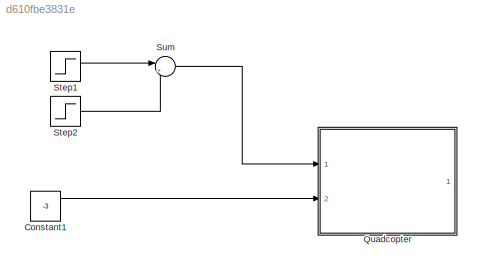
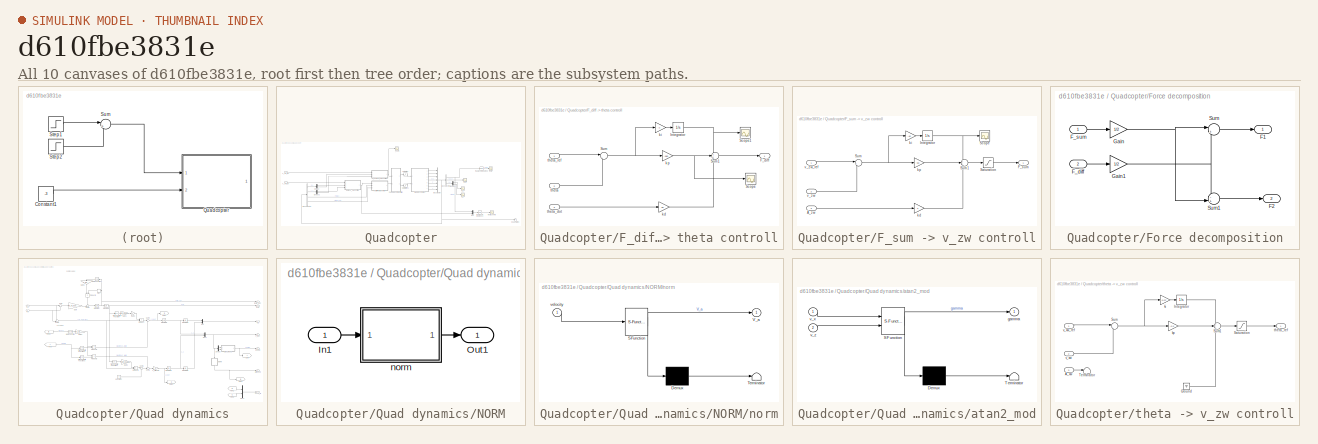
[diagram: thumbnail index - all 10 canvases of the model, root first then tree order]
MODEL slx_d610fbe3831e
KIND model
CONFIG AbsTol = auto
CONFIG EnableMultiTasking = on
CONFIG FixedStep = 1e-3
CONFIG MaxStep = auto
CONFIG MinStep = auto
CONFIG RelTol = 1e-3
CONFIG SampleTimeConstraint = Unconstrained
CONFIG Solver = FixedStepAuto
CONFIG SolverName = FixedStepAuto
CONFIG StartTime = 0.0
CONFIG StopTime = 20.0
BLOCK [Constant] Constant1
  Value = -3
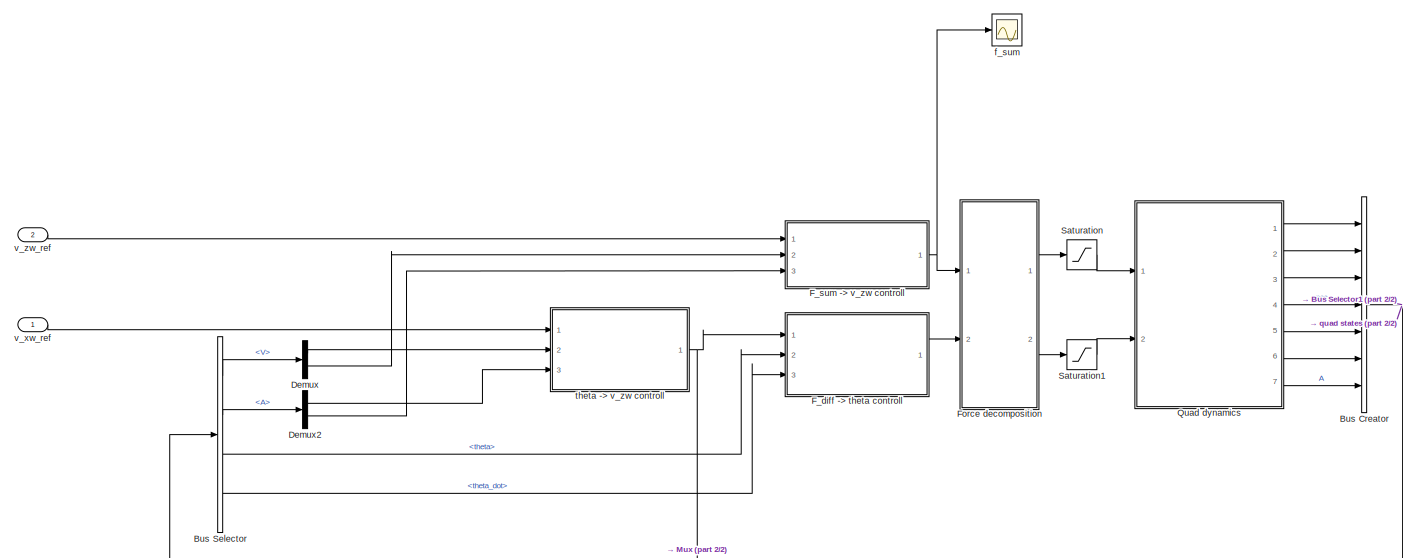
[diagram: Quadcopter - part 1/2, center side, full height]
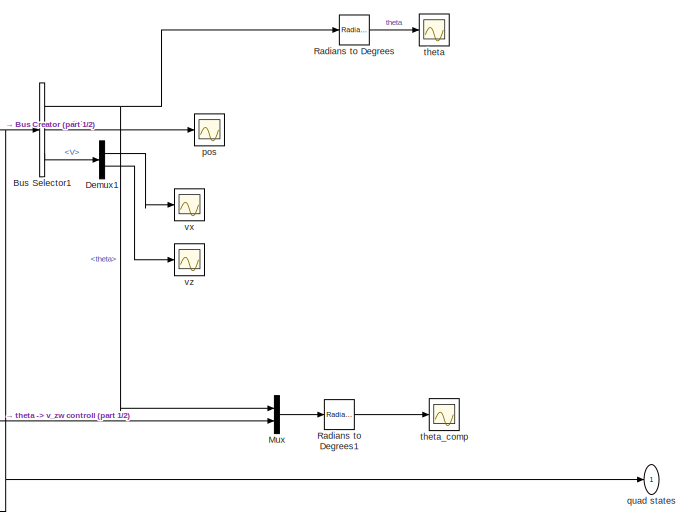
[diagram: Quadcopter - part 2/2, middle right region]
BLOCK [SubSystem] Quadcopter
  Ports = [2, 1]
  RequestExecContextInheritance = off
  Variant = off
BLOCK [BusCreator] Quadcopter/Bus Creator
  DisplayOption = bar
  InheritFromInputs = on
  Inputs = 7
  Ports = [7, 1]
BLOCK [BusSelector] Quadcopter/Bus Selector
  OutputAsBus = off
  OutputSignals = V,A,theta,theta_dot
  Ports = [1, 4]
BLOCK [BusSelector] Quadcopter/Bus Selector1
  OutputAsBus = off
  OutputSignals = theta,pos,V
  Ports = [1, 3]
BLOCK [Demux] Quadcopter/Demux
  DisplayOption = bar
  Outputs = 2
  Ports = [1, 2]
BLOCK [Demux] Quadcopter/Demux1
  DisplayOption = bar
  Outputs = 2
  Ports = [1, 2]
BLOCK [Demux] Quadcopter/Demux2
  DisplayOption = bar
  Outputs = 2
  Ports = [1, 2]
BLOCK [SubSystem] Quadcopter/F_diff -> theta controll
  Ports = [3, 1]
  RequestExecContextInheritance = off
  Variant = off
BLOCK [Outport] Quadcopter/F_diff -> theta controll/F_diff
  IconDisplay = Port number
BLOCK [Integrator] Quadcopter/F_diff -> theta controll/Integrator
  Ports = [1, 1]
BLOCK [Scope] Quadcopter/F_diff -> theta controll/Scope
  NumInputPorts = 1
  Ports = [1]
  ScopeSpecificationString = Simulink.scopes.TimeScopeBlockCfg('CurrentConfiguration', extmgr.ConfigurationSet(extmgr.Configuration('Core','General UI',true),extmgr.Configuration('Core','Source UI',true),extmgr.Configuration('Sources','WiredSimulink',true,'DataLoggingVariableName','ScopeData6'),extmgr.Configuration('Visuals','Time Domain',true,'SerializedDisplays',{struct('MinYLimReal','-489.58941','MaxYLimReal','333.65098','...<+1404ch>
BLOCK [Scope] Quadcopter/F_diff -> theta controll/Scope1
  NumInputPorts = 1
  Ports = [1]
  ScopeSpecificationString = Simulink.scopes.TimeScopeBlockCfg('CurrentConfiguration', extmgr.ConfigurationSet(extmgr.Configuration('Core','General UI',true),extmgr.Configuration('Core','Source UI',true),extmgr.Configuration('Sources','WiredSimulink',true,'DataLoggingVariableName','ScopeData7'),extmgr.Configuration('Visuals','Time Domain',true,'SerializedDisplays',{struct('MinYLimReal','-0.92171','MaxYLimReal','1.55286','YLab...<+1423ch>
BLOCK [Sum] Quadcopter/F_diff -> theta controll/Sum
  IconShape = round
  InputSameDT = off
  Inputs = |+-
  OutDataTypeStr = Inherit: Inherit via internal rule
  Ports = [2, 1]
  SaturateOnIntegerOverflow = off
BLOCK [Sum] Quadcopter/F_diff -> theta controll/Sum1
  IconShape = round
  InputSameDT = off
  Inputs = +++
  OutDataTypeStr = Inherit: Inherit via internal rule
  Ports = [3, 1]
  SaturateOnIntegerOverflow = off
BLOCK [Gain] Quadcopter/F_diff -> theta controll/kd
  Gain = 30
  OutDataTypeStr = Inherit: Inherit via internal rule
  ParamDataTypeStr = Inherit: Inherit via internal rule
  SaturateOnIntegerOverflow = off
BLOCK [Gain] Quadcopter/F_diff -> theta controll/ki
  Gain = -4
  OutDataTypeStr = Inherit: Inherit via internal rule
  ParamDataTypeStr = Inherit: Inherit via internal rule
  SaturateOnIntegerOverflow = off
BLOCK [Gain] Quadcopter/F_diff -> theta controll/kp
  Gain = -180
  OutDataTypeStr = Inherit: Inherit via internal rule
  ParamDataTypeStr = Inherit: Inherit via internal rule
  SaturateOnIntegerOverflow = off
BLOCK [Inport] Quadcopter/F_diff -> theta controll/theta
  IconDisplay = Port number
  Port = 2
BLOCK [Inport] Quadcopter/F_diff -> theta controll/theta_dot
  IconDisplay = Port number
  Port = 3
BLOCK [Inport] Quadcopter/F_diff -> theta controll/theta_ref
  IconDisplay = Port number
BLOCK [SubSystem] Quadcopter/F_sum -> v_zw controll
  Ports = [3, 1]
  RequestExecContextInheritance = off
  Variant = off
BLOCK [Inport] Quadcopter/F_sum -> v_zw controll/A_zw
  IconDisplay = Port number
  Port = 3
BLOCK [Outport] Quadcopter/F_sum -> v_zw controll/F_sum
  IconDisplay = Port number
BLOCK [Integrator] Quadcopter/F_sum -> v_zw controll/Integrator
  LimitOutput = on
  LowerSaturationLimit = -max_sum_force
  Ports = [1, 1]
  UpperSaturationLimit = max_sum_force
BLOCK [Saturate] Quadcopter/F_sum -> v_zw controll/Saturation
  InputPortMap = u0
  LowerLimit = -max_sum_force
  Ports = [1, 1]
  UpperLimit = max_sum_force
BLOCK [Scope] Quadcopter/F_sum -> v_zw controll/Scope
  NumInputPorts = 1
  Ports = [1]
  ScopeSpecificationString = Simulink.scopes.TimeScopeBlockCfg('CurrentConfiguration', extmgr.ConfigurationSet(extmgr.Configuration('Core','General UI',true),extmgr.Configuration('Core','Source UI',true),extmgr.Configuration('Sources','WiredSimulink',true,'DataLoggingVariableName','ScopeData8'),extmgr.Configuration('Visuals','Time Domain',true,'SerializedDisplays',{struct('MinYLimReal','-211.92179','MaxYLimReal','290.19255','...<+1402ch>
BLOCK [Sum] Quadcopter/F_sum -> v_zw controll/Sum
  IconShape = round
  InputSameDT = off
  Inputs = |+-
  OutDataTypeStr = Inherit: Inherit via internal rule
  Ports = [2, 1]
  SaturateOnIntegerOverflow = off
BLOCK [Sum] Quadcopter/F_sum -> v_zw controll/Sum1
  IconShape = round
  InputSameDT = off
  Inputs = +++
  OutDataTypeStr = Inherit: Inherit via internal rule
  Ports = [3, 1]
  SaturateOnIntegerOverflow = off
BLOCK [Gain] Quadcopter/F_sum -> v_zw controll/kd
  Gain = 4
  OutDataTypeStr = Inherit: Inherit via internal rule
  ParamDataTypeStr = Inherit: Inherit via internal rule
  SaturateOnIntegerOverflow = off
BLOCK [Gain] Quadcopter/F_sum -> v_zw controll/ki
  Gain = -40
  OutDataTypeStr = Inherit: Inherit via internal rule
  ParamDataTypeStr = Inherit: Inherit via internal rule
  SaturateOnIntegerOverflow = off
BLOCK [Gain] Quadcopter/F_sum -> v_zw controll/kp
  Gain = -60
  OutDataTypeStr = Inherit: Inherit via internal rule
  ParamDataTypeStr = Inherit: Inherit via internal rule
  SaturateOnIntegerOverflow = off
BLOCK [Inport] Quadcopter/F_sum -> v_zw controll/v_zw
  IconDisplay = Port number
  Port = 2
BLOCK [Inport] Quadcopter/F_sum -> v_zw controll/v_zw_ref
  IconDisplay = Port number
BLOCK [SubSystem] Quadcopter/Force decomposition
  Ports = [2, 2]
  RequestExecContextInheritance = off
  Variant = off
BLOCK [Outport] Quadcopter/Force decomposition/F1
  IconDisplay = Port number
BLOCK [Outport] Quadcopter/Force decomposition/F2
  IconDisplay = Port number
  Port = 2
BLOCK [Inport] Quadcopter/Force decomposition/F_diff
  IconDisplay = Port number
  Port = 2
BLOCK [Inport] Quadcopter/Force decomposition/F_sum
  IconDisplay = Port number
BLOCK [Gain] Quadcopter/Force decomposition/Gain
  Gain = 1/2
  OutDataTypeStr = Inherit: Inherit via internal rule
  ParamDataTypeStr = Inherit: Inherit via internal rule
  SaturateOnIntegerOverflow = off
BLOCK [Gain] Quadcopter/Force decomposition/Gain1
  Gain = 1/2
  OutDataTypeStr = Inherit: Inherit via internal rule
  ParamDataTypeStr = Inherit: Inherit via internal rule
  SaturateOnIntegerOverflow = off
BLOCK [Sum] Quadcopter/Force decomposition/Sum
  IconShape = round
  InputSameDT = off
  Inputs = |++
  OutDataTypeStr = Inherit: Inherit via internal rule
  Ports = [2, 1]
  SaturateOnIntegerOverflow = off
BLOCK [Sum] Quadcopter/Force decomposition/Sum1
  IconShape = round
  InputSameDT = off
  Inputs = -+|
  OutDataTypeStr = Inherit: Inherit via internal rule
  Ports = [2, 1]
  SaturateOnIntegerOverflow = off
BLOCK [Mux] Quadcopter/Mux
  DisplayOption = bar
  Inputs = 2
  Ports = [2, 1]
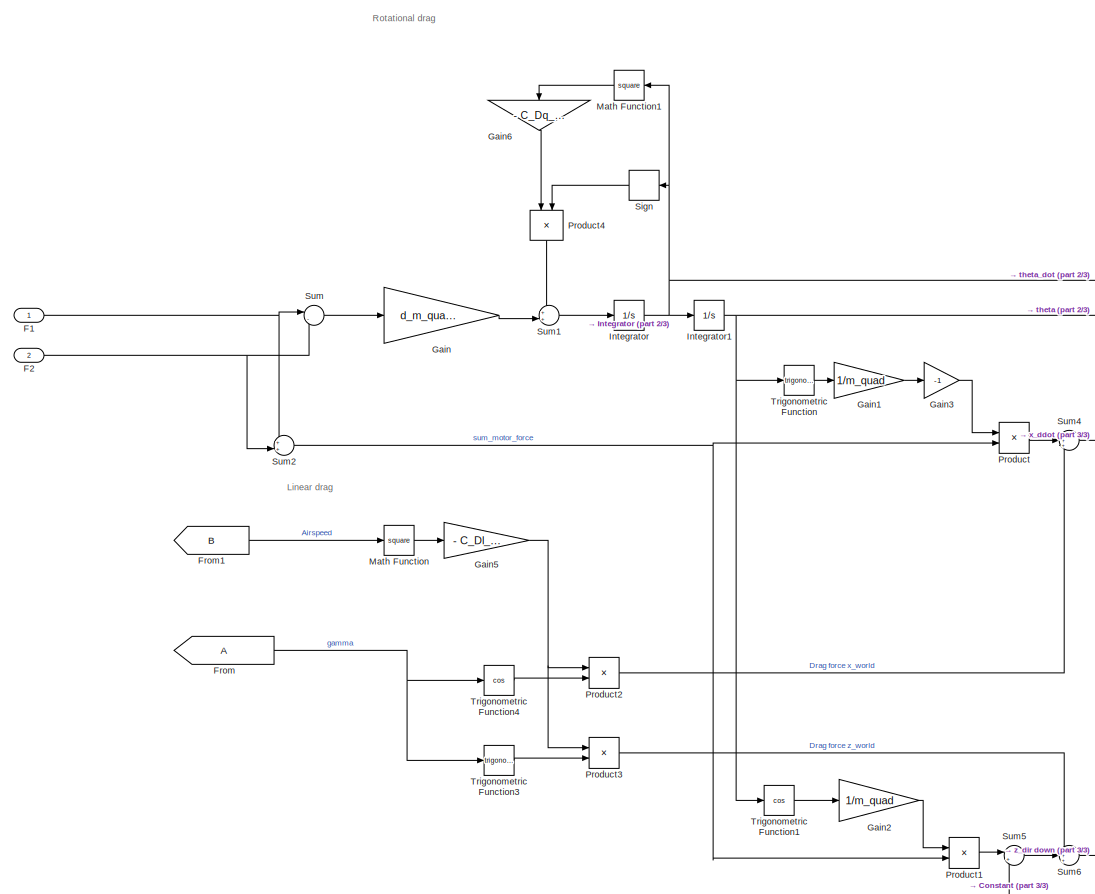
[diagram: Quadcopter/Quad dynamics - part 1/3, left side, full height]
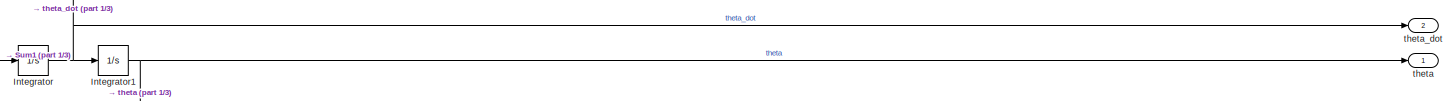
[diagram: Quadcopter/Quad dynamics - part 2/3, top center region]
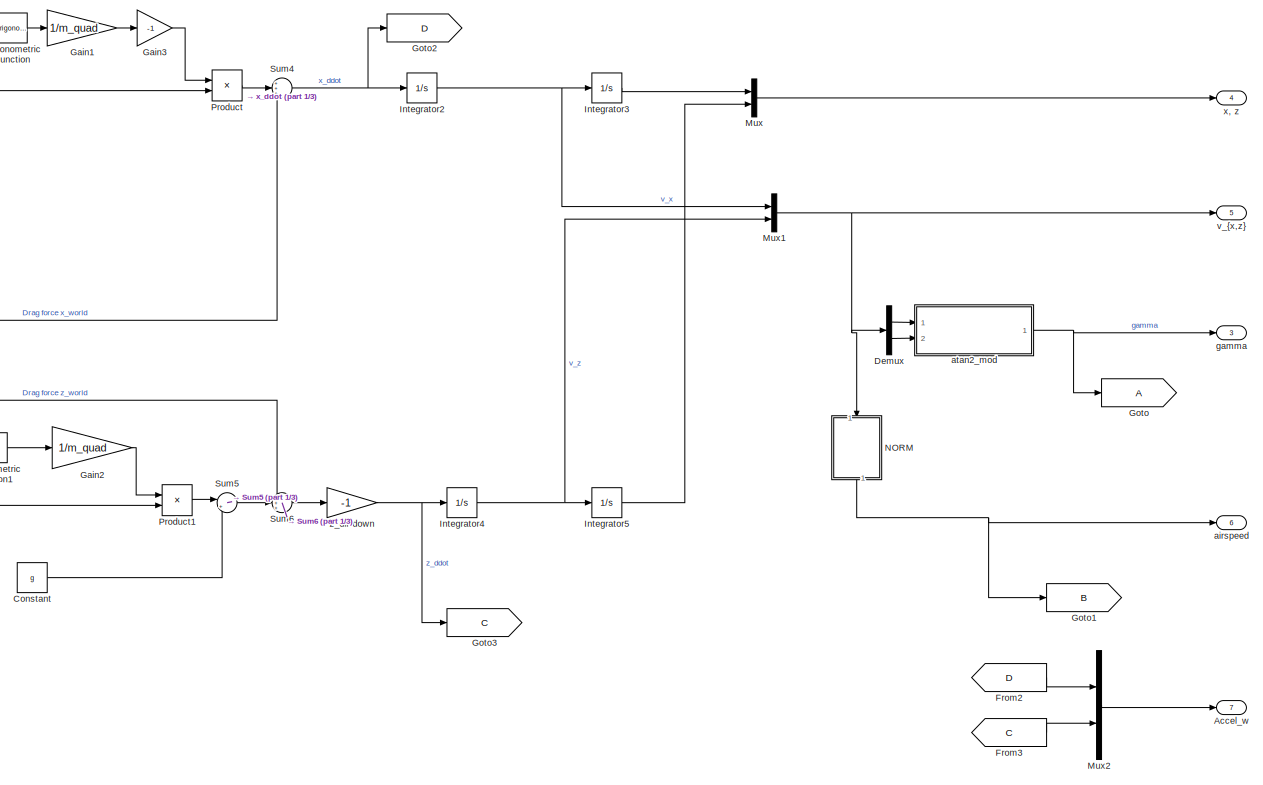
[diagram: Quadcopter/Quad dynamics - part 3/3, middle right region]
BLOCK [SubSystem] Quadcopter/Quad dynamics
  Ports = [2, 7]
  RequestExecContextInheritance = off
  Variant = off
BLOCK [Outport] Quadcopter/Quad dynamics/Accel_w
  IconDisplay = Port number
  Port = 7
BLOCK [Constant] Quadcopter/Quad dynamics/Constant
  Value = g
BLOCK [Demux] Quadcopter/Quad dynamics/Demux
  DisplayOption = bar
  Outputs = 2
  Ports = [1, 2]
BLOCK [Inport] Quadcopter/Quad dynamics/F1
  IconDisplay = Port number
BLOCK [Inport] Quadcopter/Quad dynamics/F2
  IconDisplay = Port number
  Port = 2
BLOCK [From] Quadcopter/Quad dynamics/From
  IconDisplay = Signal name
BLOCK [From] Quadcopter/Quad dynamics/From1
  GotoTag = B
  IconDisplay = Signal name
BLOCK [From] Quadcopter/Quad dynamics/From2
  GotoTag = D
  IconDisplay = Signal name
BLOCK [From] Quadcopter/Quad dynamics/From3
  GotoTag = C
  IconDisplay = Signal name
BLOCK [Gain] Quadcopter/Quad dynamics/Gain
  Gain = d_m_quad/J_quad
  OutDataTypeStr = Inherit: Inherit via internal rule
  ParamDataTypeStr = Inherit: Inherit via internal rule
  SaturateOnIntegerOverflow = off
BLOCK [Gain] Quadcopter/Quad dynamics/Gain1
  Gain = 1/m_quad
  OutDataTypeStr = Inherit: Inherit via internal rule
  ParamDataTypeStr = Inherit: Inherit via internal rule
  SaturateOnIntegerOverflow = off
BLOCK [Gain] Quadcopter/Quad dynamics/Gain2
  Gain = 1/m_quad
  OutDataTypeStr = Inherit: Inherit via internal rule
  ParamDataTypeStr = Inherit: Inherit via internal rule
  SaturateOnIntegerOverflow = off
BLOCK [Gain] Quadcopter/Quad dynamics/Gain3
  Gain = -1
  OutDataTypeStr = Inherit: Inherit via internal rule
  ParamDataTypeStr = Inherit: Inherit via internal rule
  SaturateOnIntegerOverflow = off
BLOCK [Gain] Quadcopter/Quad dynamics/Gain5
  Gain = - C_Dl_quad
  OutDataTypeStr = Inherit: Inherit via internal rule
  ParamDataTypeStr = Inherit: Inherit via internal rule
  SaturateOnIntegerOverflow = off
BLOCK [Gain] Quadcopter/Quad dynamics/Gain6
  Gain = - C_Dq_quad
  OutDataTypeStr = Inherit: Inherit via internal rule
  ParamDataTypeStr = Inherit: Inherit via internal rule
  SaturateOnIntegerOverflow = off
BLOCK [Goto] Quadcopter/Quad dynamics/Goto
  IconDisplay = Signal name
BLOCK [Goto] Quadcopter/Quad dynamics/Goto1
  GotoTag = B
  IconDisplay = Signal name
BLOCK [Goto] Quadcopter/Quad dynamics/Goto2
  GotoTag = D
  IconDisplay = Signal name
BLOCK [Goto] Quadcopter/Quad dynamics/Goto3
  GotoTag = C
  IconDisplay = Signal name
BLOCK [Integrator] Quadcopter/Quad dynamics/Integrator
  Ports = [1, 1]
BLOCK [Integrator] Quadcopter/Quad dynamics/Integrator1
  InitialCondition = 5*deg2rad
  Ports = [1, 1]
BLOCK [Integrator] Quadcopter/Quad dynamics/Integrator2
  Ports = [1, 1]
BLOCK [Integrator] Quadcopter/Quad dynamics/Integrator3
  Ports = [1, 1]
BLOCK [Integrator] Quadcopter/Quad dynamics/Integrator4
  Ports = [1, 1]
BLOCK [Integrator] Quadcopter/Quad dynamics/Integrator5
  Ports = [1, 1]
BLOCK [Math] Quadcopter/Quad dynamics/Math Function
  Operator = square
  Ports = [1, 1]
BLOCK [Math] Quadcopter/Quad dynamics/Math Function1
  Operator = square
  Ports = [1, 1]
BLOCK [Mux] Quadcopter/Quad dynamics/Mux
  DisplayOption = bar
  Inputs = 2
  Ports = [2, 1]
BLOCK [Mux] Quadcopter/Quad dynamics/Mux1
  DisplayOption = bar
  Inputs = 2
  Ports = [2, 1]
BLOCK [Mux] Quadcopter/Quad dynamics/Mux2
  DisplayOption = bar
  Inputs = 2
  Ports = [2, 1]
BLOCK [SubSystem] Quadcopter/Quad dynamics/NORM
  Ports = [1, 1]
  RequestExecContextInheritance = off
  Variant = off
BLOCK [Inport] Quadcopter/Quad dynamics/NORM/In1
  IconDisplay = Port number
BLOCK [Outport] Quadcopter/Quad dynamics/NORM/Out1
  IconDisplay = Port number
BLOCK [SubSystem] Quadcopter/Quad dynamics/NORM/norm
  ErrorFcn = Stateflow.Translate.translate
  PermitHierarchicalResolution = ExplicitOnly
  Ports = [1, 1]
  RequestExecContextInheritance = off
  SFBlockType = MATLAB Function
  TreatAsAtomicUnit = on
  Variant = off
BLOCK [Demux] Quadcopter/Quad dynamics/NORM/norm/ Demux 
  Outputs = 1
  Ports = [1, 1]
BLOCK [S-Function] Quadcopter/Quad dynamics/NORM/norm/ SFunction 
  EnableBusSupport = on
  FunctionName = sf_sfun
  PortCounts = [1 2]
  Ports = [1, 2]
  SFcnIsStateOwnerBlock = off
  SFunctionDeploymentMode = off
  Tag = Stateflow S-Function long_quad 2
BLOCK [Terminator] Quadcopter/Quad dynamics/NORM/norm/ Terminator 
BLOCK [Outport] Quadcopter/Quad dynamics/NORM/norm/V_a
  IconDisplay = Port number
BLOCK [Inport] Quadcopter/Quad dynamics/NORM/norm/velocity
  IconDisplay = Port number
BLOCK [Product] Quadcopter/Quad dynamics/Product
  InputSameDT = off
  OutDataTypeStr = Inherit: Inherit via internal rule
  Ports = [2, 1]
  RndMeth = Floor
  SaturateOnIntegerOverflow = off
BLOCK [Product] Quadcopter/Quad dynamics/Product1
  InputSameDT = off
  OutDataTypeStr = Inherit: Inherit via internal rule
  Ports = [2, 1]
  RndMeth = Floor
  SaturateOnIntegerOverflow = off
BLOCK [Product] Quadcopter/Quad dynamics/Product2
  InputSameDT = off
  OutDataTypeStr = Inherit: Inherit via internal rule
  Ports = [2, 1]
  RndMeth = Floor
  SaturateOnIntegerOverflow = off
BLOCK [Product] Quadcopter/Quad dynamics/Product3
  InputSameDT = off
  OutDataTypeStr = Inherit: Inherit via internal rule
  Ports = [2, 1]
  RndMeth = Floor
  SaturateOnIntegerOverflow = off
BLOCK [Product] Quadcopter/Quad dynamics/Product4
  InputSameDT = off
  OutDataTypeStr = Inherit: Inherit via internal rule
  Ports = [2, 1]
  RndMeth = Floor
  SaturateOnIntegerOverflow = off
BLOCK [Signum] Quadcopter/Quad dynamics/Sign
BLOCK [Sum] Quadcopter/Quad dynamics/Sum
  IconShape = round
  InputSameDT = off
  Inputs = |-+
  OutDataTypeStr = Inherit: Inherit via internal rule
  Ports = [2, 1]
  SaturateOnIntegerOverflow = off
BLOCK [Sum] Quadcopter/Quad dynamics/Sum1
  IconShape = round
  InputSameDT = off
  Inputs = ++|
  OutDataTypeStr = Inherit: Inherit via internal rule
  Ports = [2, 1]
  SaturateOnIntegerOverflow = off
BLOCK [Sum] Quadcopter/Quad dynamics/Sum2
  IconShape = round
  InputSameDT = off
  Inputs = ++|
  OutDataTypeStr = Inherit: Inherit via internal rule
  Ports = [2, 1]
  SaturateOnIntegerOverflow = off
BLOCK [Sum] Quadcopter/Quad dynamics/Sum4
  IconShape = round
  InputSameDT = off
  Inputs = +++
  OutDataTypeStr = Inherit: Inherit via internal rule
  Ports = [3, 1]
  SaturateOnIntegerOverflow = off
BLOCK [Sum] Quadcopter/Quad dynamics/Sum5
  IconShape = round
  InputSameDT = off
  Inputs = |+-
  OutDataTypeStr = Inherit: Inherit via internal rule
  Ports = [2, 1]
  SaturateOnIntegerOverflow = off
BLOCK [Sum] Quadcopter/Quad dynamics/Sum6
  IconShape = round
  InputSameDT = off
  Inputs = +++
  OutDataTypeStr = Inherit: Inherit via internal rule
  Ports = [3, 1]
  SaturateOnIntegerOverflow = off
BLOCK [Trigonometry] Quadcopter/Quad dynamics/Trigonometric Function
  Ports = [1, 1]
BLOCK [Trigonometry] Quadcopter/Quad dynamics/Trigonometric Function1
  Operator = cos
  Ports = [1, 1]
BLOCK [Trigonometry] Quadcopter/Quad dynamics/Trigonometric Function3
  Ports = [1, 1]
BLOCK [Trigonometry] Quadcopter/Quad dynamics/Trigonometric Function4
  Operator = cos
  Ports = [1, 1]
BLOCK [Outport] Quadcopter/Quad dynamics/airspeed
  IconDisplay = Port number
  Port = 6
BLOCK [SubSystem] Quadcopter/Quad dynamics/atan2_mod
  ErrorFcn = Stateflow.Translate.translate
  PermitHierarchicalResolution = ExplicitOnly
  Ports = [2, 1]
  RequestExecContextInheritance = off
  SFBlockType = MATLAB Function
  TreatAsAtomicUnit = on
  Variant = off
BLOCK [Demux] Quadcopter/Quad dynamics/atan2_mod/ Demux 
  Outputs = 1
  Ports = [1, 1]
BLOCK [S-Function] Quadcopter/Quad dynamics/atan2_mod/ SFunction 
  EnableBusSupport = on
  FunctionName = sf_sfun
  PortCounts = [2 2]
  Ports = [2, 2]
  SFcnIsStateOwnerBlock = off
  SFunctionDeploymentMode = off
  Tag = Stateflow S-Function long_quad 1
BLOCK [Terminator] Quadcopter/Quad dynamics/atan2_mod/ Terminator 
BLOCK [Outport] Quadcopter/Quad dynamics/atan2_mod/gamma
  IconDisplay = Port number
BLOCK [Inport] Quadcopter/Quad dynamics/atan2_mod/v_x
  IconDisplay = Port number
BLOCK [Inport] Quadcopter/Quad dynamics/atan2_mod/v_z
  IconDisplay = Port number
  Port = 2
BLOCK [Outport] Quadcopter/Quad dynamics/gamma
  IconDisplay = Port number
  Port = 3
BLOCK [Outport] Quadcopter/Quad dynamics/theta
  IconDisplay = Port number
BLOCK [Outport] Quadcopter/Quad dynamics/theta_dot
  IconDisplay = Port number
  Port = 2
BLOCK [Outport] Quadcopter/Quad dynamics/v_{x,z}
  IconDisplay = Port number
  Port = 5
BLOCK [Outport] Quadcopter/Quad dynamics/x, z
  IconDisplay = Port number
  Port = 4
BLOCK [Gain] Quadcopter/Quad dynamics/z_dir down
  Gain = -1
  OutDataTypeStr = Inherit: Inherit via internal rule
  ParamDataTypeStr = Inherit: Inherit via internal rule
  SaturateOnIntegerOverflow = off
BLOCK [Reference] Quadcopter/Radians to Degrees  REF=simulink_extras/Transformations/Radians
to Degrees
  Ports = [1, 1]
  SourceBlock = simulink_extras/Transformations/Radians\nto Degrees
  SourceProductBaseCode = SL
  SourceProductName = Simulink
  SourceType = RadiansToDegrees
BLOCK [Reference] Quadcopter/Radians to Degrees1  REF=simulink_extras/Transformations/Radians
to Degrees
  Ports = [1, 1]
  SourceBlock = simulink_extras/Transformations/Radians\nto Degrees
  SourceProductBaseCode = SL
  SourceProductName = Simulink
  SourceType = RadiansToDegrees
BLOCK [Saturate] Quadcopter/Saturation
  InputPortMap = u0
  LowerLimit = -max_sum_force/2
  Ports = [1, 1]
  UpperLimit = max_sum_force/2
BLOCK [Saturate] Quadcopter/Saturation1
  InputPortMap = u0
  LowerLimit = -max_sum_force/2
  Ports = [1, 1]
  UpperLimit = max_sum_force/2
BLOCK [Scope] Quadcopter/f_sum
  NumInputPorts = 1
  Ports = [1]
  ScopeSpecificationString = Simulink.scopes.TimeScopeBlockCfg('CurrentConfiguration', extmgr.ConfigurationSet(extmgr.Configuration('Core','General UI',true),extmgr.Configuration('Core','Source UI',true),extmgr.Configuration('Sources','WiredSimulink',true,'DataLoggingSaveFormat','Array','DataLoggingDecimation','1','DataLoggingDecimateData',true,'DataLoggingVariableName','ScopeData5'),extmgr.Configuration('Visuals','Time Domai...<+1702ch>
BLOCK [Scope] Quadcopter/pos 
  NumInputPorts = 1
  Ports = [1]
  ScopeSpecificationString = Simulink.scopes.TimeScopeBlockCfg('CurrentConfiguration', extmgr.ConfigurationSet(extmgr.Configuration('Core','General UI',true),extmgr.Configuration('Core','Source UI',true),extmgr.Configuration('Sources','WiredSimulink',true,'DataLoggingSaveFormat','Array','DataLoggingDecimation','1','DataLoggingDecimateData',true,'DataLoggingVariableName','ScopeData1'),extmgr.Configuration('Visuals','Time Domai...<+1720ch>
BLOCK [Outport] Quadcopter/quad states
  IconDisplay = Port number
BLOCK [Scope] Quadcopter/theta
  NumInputPorts = 1
  Ports = [1]
  ScopeSpecificationString = Simulink.scopes.TimeScopeBlockCfg('CurrentConfiguration', extmgr.ConfigurationSet(extmgr.Configuration('Core','General UI',true),extmgr.Configuration('Core','Source UI',true),extmgr.Configuration('Sources','WiredSimulink',true,'DataLoggingSaveFormat','Array','DataLoggingDecimation','1','DataLoggingDecimateData',true),extmgr.Configuration('Visuals','Time Domain',true,'SerializedDisplays',{struct('M...<+1666ch>
BLOCK [SubSystem] Quadcopter/theta -> v_zw controll
  Ports = [3, 1]
  RequestExecContextInheritance = off
  Variant = off
BLOCK [Inport] Quadcopter/theta -> v_zw controll/A_xw
  IconDisplay = Port number
  Port = 3
BLOCK [Ground] Quadcopter/theta -> v_zw controll/Ground
BLOCK [Integrator] Quadcopter/theta -> v_zw controll/Integrator
  LimitOutput = on
  LowerSaturationLimit = -80*deg2rad
  Ports = [1, 1]
  UpperSaturationLimit = 80*deg2rad
BLOCK [Saturate] Quadcopter/theta -> v_zw controll/Saturation
  InputPortMap = u0
  LowerLimit = -80*deg2rad
  Ports = [1, 1]
  UpperLimit = 80*deg2rad
BLOCK [Sum] Quadcopter/theta -> v_zw controll/Sum
  IconShape = round
  InputSameDT = off
  Inputs = |+-
  OutDataTypeStr = Inherit: Inherit via internal rule
  Ports = [2, 1]
  SaturateOnIntegerOverflow = off
BLOCK [Sum] Quadcopter/theta -> v_zw controll/Sum1
  IconShape = round
  InputSameDT = off
  Inputs = +++
  OutDataTypeStr = Inherit: Inherit via internal rule
  Ports = [3, 1]
  SaturateOnIntegerOverflow = off
BLOCK [Terminator] Quadcopter/theta -> v_zw controll/Terminator
BLOCK [Gain] Quadcopter/theta -> v_zw controll/ki
  Gain = -0.07
  OutDataTypeStr = Inherit: Inherit via internal rule
  ParamDataTypeStr = Inherit: Inherit via internal rule
  SaturateOnIntegerOverflow = off
BLOCK [Gain] Quadcopter/theta -> v_zw controll/kp
  Gain = -0.5
  OutDataTypeStr = Inherit: Inherit via internal rule
  ParamDataTypeStr = Inherit: Inherit via internal rule
  SaturateOnIntegerOverflow = off
BLOCK [Outport] Quadcopter/theta -> v_zw controll/theta_ref
  IconDisplay = Port number
BLOCK [Inport] Quadcopter/theta -> v_zw controll/v_xw
  IconDisplay = Port number
  Port = 2
BLOCK [Inport] Quadcopter/theta -> v_zw controll/v_xw_ref
  IconDisplay = Port number
BLOCK [Scope] Quadcopter/theta_comp
  NumInputPorts = 1
  Ports = [1]
  ScopeSpecificationString = Simulink.scopes.TimeScopeBlockCfg('CurrentConfiguration', extmgr.ConfigurationSet(extmgr.Configuration('Core','General UI',true),extmgr.Configuration('Core','Source UI',true),extmgr.Configuration('Sources','WiredSimulink',true,'DataLoggingSaveFormat','Array','DataLoggingDecimation','1','DataLoggingDecimateData',true,'DataLoggingVariableName','ScopeData2'),extmgr.Configuration('Visuals','Time Domai...<+1744ch>
BLOCK [Inport] Quadcopter/v_xw_ref
  IconDisplay = Port number
BLOCK [Inport] Quadcopter/v_zw_ref
  IconDisplay = Port number
  Port = 2
BLOCK [Scope] Quadcopter/vx
  NumInputPorts = 1
  Ports = [1]
  ScopeSpecificationString = Simulink.scopes.TimeScopeBlockCfg('CurrentConfiguration', extmgr.ConfigurationSet(extmgr.Configuration('Core','General UI',true),extmgr.Configuration('Core','Source UI',true),extmgr.Configuration('Sources','WiredSimulink',true,'DataLoggingSaveFormat','Array','DataLoggingDecimation','1','DataLoggingDecimateData',true,'DataLoggingVariableName','ScopeData4'),extmgr.Configuration('Visuals','Time Domai...<+1682ch>
BLOCK [Scope] Quadcopter/vz 
  NumInputPorts = 1
  Ports = [1]
  ScopeSpecificationString = Simulink.scopes.TimeScopeBlockCfg('CurrentConfiguration', extmgr.ConfigurationSet(extmgr.Configuration('Core','General UI',true),extmgr.Configuration('Core','Source UI',true),extmgr.Configuration('Sources','WiredSimulink',true,'DataLoggingSaveFormat','Array','DataLoggingDecimation','1','DataLoggingDecimateData',true,'DataLoggingVariableName','ScopeData2'),extmgr.Configuration('Visuals','Time Domai...<+1706ch>
BLOCK [Step] Step1
  After = 17
  SampleTime = 0
  Time = 5
BLOCK [Step] Step2
  After = -5
  SampleTime = 0
  Time = 14
BLOCK [Sum] Sum
  IconShape = round
  InputSameDT = off
  Inputs = |++
  OutDataTypeStr = Inherit: Inherit via internal rule
  Ports = [2, 1]
  SaturateOnIntegerOverflow = off
ANNOTATION Quadcopter/Quad dynamics: Linear drag
ANNOTATION Quadcopter/Quad dynamics: Rotational drag
LINE Constant1:1 -> Quadcopter:2
NET Quadcopter/Bus Creator:1 -> Quadcopter/Bus Selector1:1, Quadcopter/Bus Selector:1, Quadcopter/quad states:1
NET Quadcopter/Bus Selector1:1 -> Quadcopter/Mux:1, Quadcopter/Radians to Degrees:1
LINE Quadcopter/Bus Selector1:2 -> Quadcopter/pos :1
LINE Quadcopter/Bus Selector1:3 -> Quadcopter/Demux1:1
LINE Quadcopter/Bus Selector:1 -> Quadcopter/Demux:1
LINE Quadcopter/Bus Selector:2 -> Quadcopter/Demux2:1
LINE Quadcopter/Bus Selector:3 -> Quadcopter/F_diff -> theta controll:2
LINE Quadcopter/Bus Selector:4 -> Quadcopter/F_diff -> theta controll:3
LINE Quadcopter/Demux1:1 -> Quadcopter/vx:1
LINE Quadcopter/Demux1:2 -> Quadcopter/vz :1
LINE Quadcopter/Demux2:1 -> Quadcopter/theta -> v_zw controll:3
LINE Quadcopter/Demux2:2 -> Quadcopter/F_sum -> v_zw controll:3
LINE Quadcopter/Demux:1 -> Quadcopter/theta -> v_zw controll:2
LINE Quadcopter/Demux:2 -> Quadcopter/F_sum -> v_zw controll:2
NET Quadcopter/F_diff -> theta controll/Integrator:1 -> Quadcopter/F_diff -> theta controll/Scope1:1, Quadcopter/F_diff -> theta controll/Sum1:1
LINE Quadcopter/F_diff -> theta controll/Sum1:1 -> Quadcopter/F_diff -> theta controll/F_diff:1
NET Quadcopter/F_diff -> theta controll/Sum:1 -> Quadcopter/F_diff -> theta controll/ki:1, Quadcopter/F_diff -> theta controll/kp:1
LINE Quadcopter/F_diff -> theta controll/kd:1 -> Quadcopter/F_diff -> theta controll/Sum1:3
LINE Quadcopter/F_diff -> theta controll/ki:1 -> Quadcopter/F_diff -> theta controll/Integrator:1
NET Quadcopter/F_diff -> theta controll/kp:1 -> Quadcopter/F_diff -> theta controll/Scope:1, Quadcopter/F_diff -> theta controll/Sum1:2
LINE Quadcopter/F_diff -> theta controll/theta:1 -> Quadcopter/F_diff -> theta controll/Sum:2
LINE Quadcopter/F_diff -> theta controll/theta_dot:1 -> Quadcopter/F_diff -> theta controll/kd:1
LINE Quadcopter/F_diff -> theta controll/theta_ref:1 -> Quadcopter/F_diff -> theta controll/Sum:1
LINE Quadcopter/F_diff -> theta controll:1 -> Quadcopter/Force decomposition:2
LINE Quadcopter/F_sum -> v_zw controll/A_zw:1 -> Quadcopter/F_sum -> v_zw controll/kd:1
NET Quadcopter/F_sum -> v_zw controll/Integrator:1 -> Quadcopter/F_sum -> v_zw controll/Scope:1, Quadcopter/F_sum -> v_zw controll/Sum1:1
LINE Quadcopter/F_sum -> v_zw controll/Saturation:1 -> Quadcopter/F_sum -> v_zw controll/F_sum:1
LINE Quadcopter/F_sum -> v_zw controll/Sum1:1 -> Quadcopter/F_sum -> v_zw controll/Saturation:1
NET Quadcopter/F_sum -> v_zw controll/Sum:1 -> Quadcopter/F_sum -> v_zw controll/ki:1, Quadcopter/F_sum -> v_zw controll/kp:1
LINE Quadcopter/F_sum -> v_zw controll/kd:1 -> Quadcopter/F_sum -> v_zw controll/Sum1:3
LINE Quadcopter/F_sum -> v_zw controll/ki:1 -> Quadcopter/F_sum -> v_zw controll/Integrator:1
LINE Quadcopter/F_sum -> v_zw controll/kp:1 -> Quadcopter/F_sum -> v_zw controll/Sum1:2
LINE Quadcopter/F_sum -> v_zw controll/v_zw:1 -> Quadcopter/F_sum -> v_zw controll/Sum:2
LINE Quadcopter/F_sum -> v_zw controll/v_zw_ref:1 -> Quadcopter/F_sum -> v_zw controll/Sum:1
NET Quadcopter/F_sum -> v_zw controll:1 -> Quadcopter/Force decomposition:1, Quadcopter/f_sum:1
LINE Quadcopter/Force decomposition/F_diff:1 -> Quadcopter/Force decomposition/Gain1:1
LINE Quadcopter/Force decomposition/F_sum:1 -> Quadcopter/Force decomposition/Gain:1
NET Quadcopter/Force decomposition/Gain1:1 -> Quadcopter/Force decomposition/Sum1:1, Quadcopter/Force decomposition/Sum:2
NET Quadcopter/Force decomposition/Gain:1 -> Quadcopter/Force decomposition/Sum1:2, Quadcopter/Force decomposition/Sum:1
LINE Quadcopter/Force decomposition/Sum1:1 -> Quadcopter/Force decomposition/F2:1
LINE Quadcopter/Force decomposition/Sum:1 -> Quadcopter/Force decomposition/F1:1
LINE Quadcopter/Force decomposition:1 -> Quadcopter/Saturation:1
LINE Quadcopter/Force decomposition:2 -> Quadcopter/Saturation1:1
LINE Quadcopter/Mux:1 -> Quadcopter/Radians to Degrees1:1
LINE Quadcopter/Quad dynamics/Constant:1 -> Quadcopter/Quad dynamics/Sum5:2
LINE Quadcopter/Quad dynamics/Demux:1 -> Quadcopter/Quad dynamics/atan2_mod:1
LINE Quadcopter/Quad dynamics/Demux:2 -> Quadcopter/Quad dynamics/atan2_mod:2
NET Quadcopter/Quad dynamics/F1:1 -> Quadcopter/Quad dynamics/Sum2:1, Quadcopter/Quad dynamics/Sum:1
NET Quadcopter/Quad dynamics/F2:1 -> Quadcopter/Quad dynamics/Sum2:2, Quadcopter/Quad dynamics/Sum:2
LINE Quadcopter/Quad dynamics/From1:1 -> Quadcopter/Quad dynamics/Math Function:1
LINE Quadcopter/Quad dynamics/From2:1 -> Quadcopter/Quad dynamics/Mux2:1
LINE Quadcopter/Quad dynamics/From3:1 -> Quadcopter/Quad dynamics/Mux2:2
NET Quadcopter/Quad dynamics/From:1 -> Quadcopter/Quad dynamics/Trigonometric Function3:1, Quadcopter/Quad dynamics/Trigonometric Function4:1
LINE Quadcopter/Quad dynamics/Gain1:1 -> Quadcopter/Quad dynamics/Gain3:1
LINE Quadcopter/Quad dynamics/Gain2:1 -> Quadcopter/Quad dynamics/Product1:1
LINE Quadcopter/Quad dynamics/Gain3:1 -> Quadcopter/Quad dynamics/Product:1
NET Quadcopter/Quad dynamics/Gain5:1 -> Quadcopter/Quad dynamics/Product2:1, Quadcopter/Quad dynamics/Product3:1
LINE Quadcopter/Quad dynamics/Gain6:1 -> Quadcopter/Quad dynamics/Product4:1
LINE Quadcopter/Quad dynamics/Gain:1 -> Quadcopter/Quad dynamics/Sum1:2
NET Quadcopter/Quad dynamics/Integrator1:1 -> Quadcopter/Quad dynamics/Trigonometric Function1:1, Quadcopter/Quad dynamics/Trigonometric Function:1, Quadcopter/Quad dynamics/theta:1
NET Quadcopter/Quad dynamics/Integrator2:1 -> Quadcopter/Quad dynamics/Integrator3:1, Quadcopter/Quad dynamics/Mux1:1
LINE Quadcopter/Quad dynamics/Integrator3:1 -> Quadcopter/Quad dynamics/Mux:1
NET Quadcopter/Quad dynamics/Integrator4:1 -> Quadcopter/Quad dynamics/Integrator5:1, Quadcopter/Quad dynamics/Mux1:2
LINE Quadcopter/Quad dynamics/Integrator5:1 -> Quadcopter/Quad dynamics/Mux:2
NET Quadcopter/Quad dynamics/Integrator:1 -> Quadcopter/Quad dynamics/Integrator1:1, Quadcopter/Quad dynamics/Math Function1:1, Quadcopter/Quad dynamics/Sign:1, Quadcopter/Quad dynamics/theta_dot:1
LINE Quadcopter/Quad dynamics/Math Function1:1 -> Quadcopter/Quad dynamics/Gain6:1
LINE Quadcopter/Quad dynamics/Math Function:1 -> Quadcopter/Quad dynamics/Gain5:1
NET Quadcopter/Quad dynamics/Mux1:1 -> Quadcopter/Quad dynamics/Demux:1, Quadcopter/Quad dynamics/NORM:1, Quadcopter/Quad dynamics/v_{x,z}:1
LINE Quadcopter/Quad dynamics/Mux2:1 -> Quadcopter/Quad dynamics/Accel_w:1
LINE Quadcopter/Quad dynamics/Mux:1 -> Quadcopter/Quad dynamics/x, z:1
LINE Quadcopter/Quad dynamics/NORM/In1:1 -> Quadcopter/Quad dynamics/NORM/norm:1
LINE Quadcopter/Quad dynamics/NORM/norm:1 -> Quadcopter/Quad dynamics/NORM/Out1:1
NET Quadcopter/Quad dynamics/NORM:1 -> Quadcopter/Quad dynamics/Goto1:1, Quadcopter/Quad dynamics/airspeed:1
LINE Quadcopter/Quad dynamics/Product1:1 -> Quadcopter/Quad dynamics/Sum5:1
LINE Quadcopter/Quad dynamics/Product2:1 -> Quadcopter/Quad dynamics/Sum4:3
LINE Quadcopter/Quad dynamics/Product3:1 -> Quadcopter/Quad dynamics/Sum6:1
LINE Quadcopter/Quad dynamics/Product4:1 -> Quadcopter/Quad dynamics/Sum1:1
LINE Quadcopter/Quad dynamics/Product:1 -> Quadcopter/Quad dynamics/Sum4:2
LINE Quadcopter/Quad dynamics/Sign:1 -> Quadcopter/Quad dynamics/Product4:2
LINE Quadcopter/Quad dynamics/Sum1:1 -> Quadcopter/Quad dynamics/Integrator:1
NET Quadcopter/Quad dynamics/Sum2:1 -> Quadcopter/Quad dynamics/Product1:2, Quadcopter/Quad dynamics/Product:2
NET Quadcopter/Quad dynamics/Sum4:1 -> Quadcopter/Quad dynamics/Goto2:1, Quadcopter/Quad dynamics/Integrator2:1
LINE Quadcopter/Quad dynamics/Sum5:1 -> Quadcopter/Quad dynamics/Sum6:2
LINE Quadcopter/Quad dynamics/Sum6:1 -> Quadcopter/Quad dynamics/z_dir down:1
LINE Quadcopter/Quad dynamics/Sum:1 -> Quadcopter/Quad dynamics/Gain:1
LINE Quadcopter/Quad dynamics/Trigonometric Function1:1 -> Quadcopter/Quad dynamics/Gain2:1
LINE Quadcopter/Quad dynamics/Trigonometric Function3:1 -> Quadcopter/Quad dynamics/Product3:2
LINE Quadcopter/Quad dynamics/Trigonometric Function4:1 -> Quadcopter/Quad dynamics/Product2:2
LINE Quadcopter/Quad dynamics/Trigonometric Function:1 -> Quadcopter/Quad dynamics/Gain1:1
NET Quadcopter/Quad dynamics/atan2_mod:1 -> Quadcopter/Quad dynamics/Goto:1, Quadcopter/Quad dynamics/gamma:1
NET Quadcopter/Quad dynamics/z_dir down:1 -> Quadcopter/Quad dynamics/Goto3:1, Quadcopter/Quad dynamics/Integrator4:1
LINE Quadcopter/Quad dynamics:1 -> Quadcopter/Bus Creator:1
LINE Quadcopter/Quad dynamics:2 -> Quadcopter/Bus Creator:2
LINE Quadcopter/Quad dynamics:3 -> Quadcopter/Bus Creator:3
LINE Quadcopter/Quad dynamics:4 -> Quadcopter/Bus Creator:4
LINE Quadcopter/Quad dynamics:5 -> Quadcopter/Bus Creator:5
LINE Quadcopter/Quad dynamics:6 -> Quadcopter/Bus Creator:6
LINE Quadcopter/Quad dynamics:7 -> Quadcopter/Bus Creator:7
LINE Quadcopter/Radians to Degrees1:1 -> Quadcopter/theta_comp:1
LINE Quadcopter/Radians to Degrees:1 -> Quadcopter/theta:1
LINE Quadcopter/Saturation1:1 -> Quadcopter/Quad dynamics:2
LINE Quadcopter/Saturation:1 -> Quadcopter/Quad dynamics:1
LINE Quadcopter/theta -> v_zw controll/A_xw:1 -> Quadcopter/theta -> v_zw controll/Terminator:1
LINE Quadcopter/theta -> v_zw controll/Ground:1 -> Quadcopter/theta -> v_zw controll/Sum1:3
LINE Quadcopter/theta -> v_zw controll/Integrator:1 -> Quadcopter/theta -> v_zw controll/Sum1:1
LINE Quadcopter/theta -> v_zw controll/Saturation:1 -> Quadcopter/theta -> v_zw controll/theta_ref:1
LINE Quadcopter/theta -> v_zw controll/Sum1:1 -> Quadcopter/theta -> v_zw controll/Saturation:1
NET Quadcopter/theta -> v_zw controll/Sum:1 -> Quadcopter/theta -> v_zw controll/ki:1, Quadcopter/theta -> v_zw controll/kp:1
LINE Quadcopter/theta -> v_zw controll/ki:1 -> Quadcopter/theta -> v_zw controll/Integrator:1
LINE Quadcopter/theta -> v_zw controll/kp:1 -> Quadcopter/theta -> v_zw controll/Sum1:2
LINE Quadcopter/theta -> v_zw controll/v_xw:1 -> Quadcopter/theta -> v_zw controll/Sum:2
LINE Quadcopter/theta -> v_zw controll/v_xw_ref:1 -> Quadcopter/theta -> v_zw controll/Sum:1
NET Quadcopter/theta -> v_zw controll:1 -> Quadcopter/F_diff -> theta controll:1, Quadcopter/Mux:2
LINE Quadcopter/v_xw_ref:1 -> Quadcopter/theta -> v_zw controll:1
LINE Quadcopter/v_zw_ref:1 -> Quadcopter/F_sum -> v_zw controll:1
LINE Step1:1 -> Sum:1
LINE Step2:1 -> Sum:2
LINE Sum:1 -> Quadcopter:1
note: NET lines group one-source signal fan-out (src -> all destinations, sorted); 1:1 wires keep LINE
CHART Quadcopter/Quad dynamics/atan2_mod states=1 transitions=1
  STATE_LABEL 'eML_blk_kernel()'
  STATE_LABEL 'SCRIPT:\nfunction gamma = atan2_mod(v_x,v_z)\n\nif v_x == 0\n    gamma = 90;\n    if v_z == 0\n        gamma = 0;\n    end\nelse\n    gamma = atan2(v_z,v_x);\nend\ngamma = -gamma;\nend\n'
CHART Quadcopter/Quad dynamics/NORM/norm states=1 transitions=1
  STATE_LABEL 'eML_blk_kernel()'
  STATE_LABEL 'SCRIPT:\nfunction V_a = norm(velocity)\nV_a = norm(velocity);\n'
